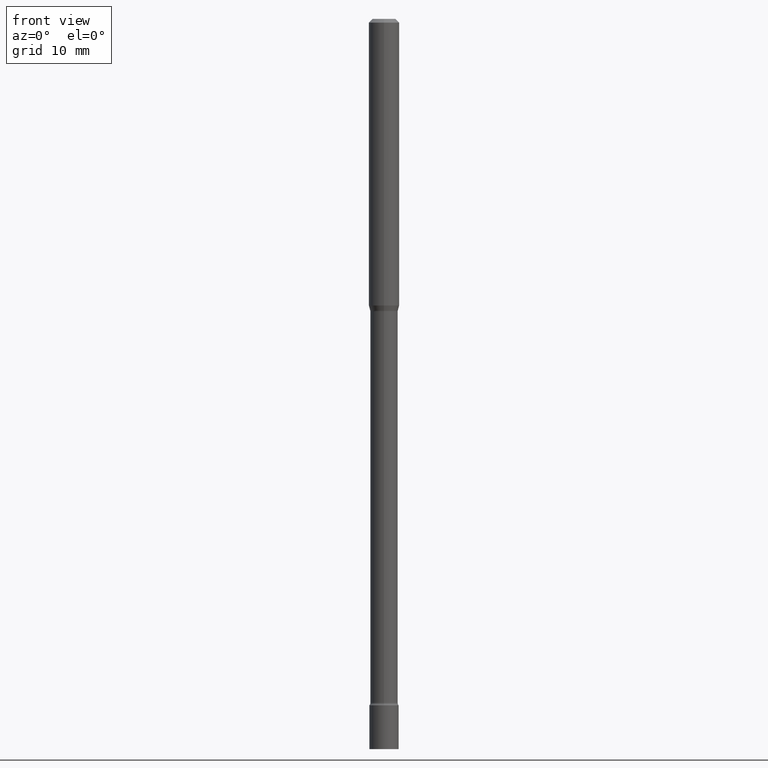
[diagram: clean part render]
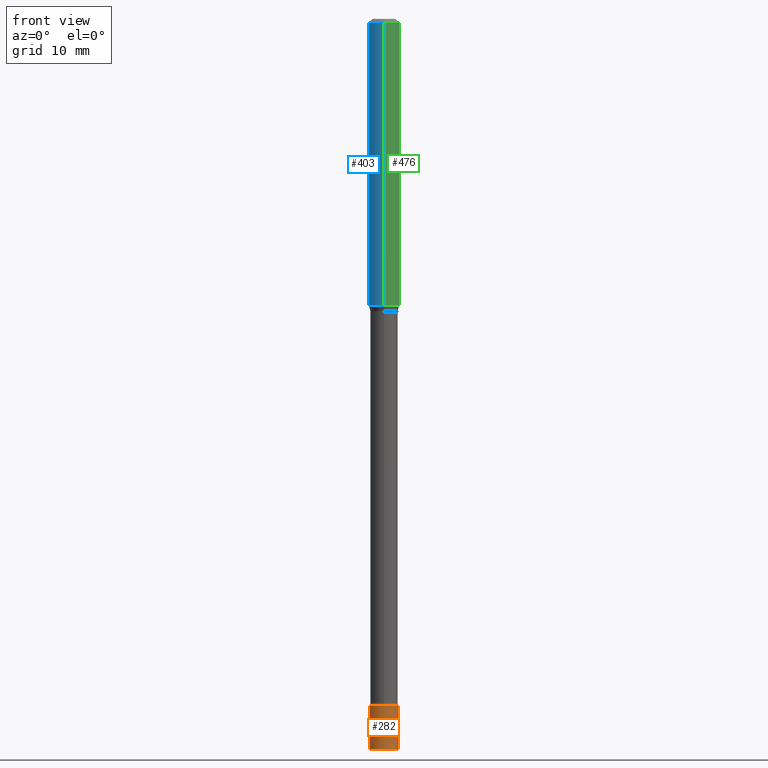
[diagram: same view with three faces highlighted in distinct colors, each labeled with its STEP entity id]
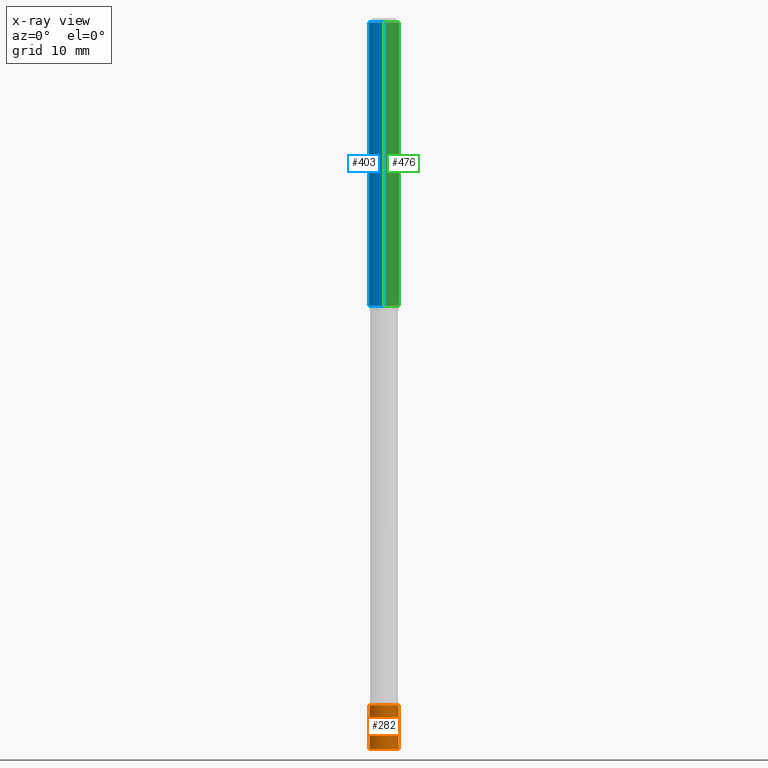
[diagram: x-ray of the same camera — body ghosted, the three highlighted faces saturated]
A machine part, front view with three faces highlighted in distinct colors.
The next image is the same camera in x-ray (body ghosted, the three faces saturated) — at least one of them is partly hidden behind the body in this view.
Their STEP definitions:

[orange] entity #282 — the highlighted cylindrical surface (edge-blend (fillet) strip) has radius 1.524 mm, axis along (-0, 0, 1).
#23 = CARTESIAN_POINT ( 'NONE',  ( 6.896222033442085337E-29, -9.845977375537671403E-15, -2.819999999999999840 ) ) ;
#36 = VECTOR ( 'NONE', #290, 39.37007874015748143 ) ;
#41 = CIRCLE ( 'NONE', #434, 0.05999999999999999778 ) ;
#42 = LINE ( 'NONE', #208, #36 ) ;
#48 = AXIS2_PLACEMENT_3D ( 'NONE', #175, #357, #256 ) ;
#51 = LINE ( 'NONE', #352, #367 ) ;
#59 = VERTEX_POINT ( 'NONE', #166 ) ;
#69 = ORIENTED_EDGE ( 'NONE', *, *, #441, .T. ) ;
#89 = FACE_OUTER_BOUND ( 'NONE', #325, .T. ) ;
#106 = EDGE_CURVE ( 'NONE', #465, #314, #400, .T. ) ;
#146 = ORIENTED_EDGE ( 'NONE', *, *, #106, .F. ) ;
#166 = CARTESIAN_POINT ( 'NONE',  ( 0.05999999999999999778, -1.089342177719061299E-14, -3.000000000000000444 ) ) ;
#175 = CARTESIAN_POINT ( 'NONE',  ( 0.000000000000000000, 0.000000000000000000, 0.000000000000000000 ) ) ;
#191 = EDGE_CURVE ( 'NONE', #459, #465, #51, .T. ) ;
#204 = DIRECTION ( 'NONE',  ( -2.445468806185136597E-29, 3.491481338843145583E-15, 1.000000000000000000 ) ) ;
#208 = CARTESIAN_POINT ( 'NONE',  ( 0.05999999999999999778, -4.189777606611760421E-16, 2.925706065477561756E-30 ) ) ;
#256 = DIRECTION ( 'NONE',  ( 1.000000000000000000, -6.982962677686267499E-15, 4.876176775795936353E-29 ) ) ;
#278 = AXIS2_PLACEMENT_3D ( 'NONE', #23, #356, #349 ) ;
#282 = ADVANCED_FACE ( 'NONE', ( #89 ), #300, .T. ) ;
#290 = DIRECTION ( 'NONE',  ( -2.445468806185136877E-29, 3.491481338843145188E-15, 1.000000000000000000 ) ) ;
#293 = CARTESIAN_POINT ( 'NONE',  ( -0.05999999999999999778, -9.733885054577494177E-15, -2.819999999999999840 ) ) ;
#300 = CYLINDRICAL_SURFACE ( 'NONE', #48, 0.05999999999999999778 ) ;
#314 = VERTEX_POINT ( 'NONE', #373 ) ;
#325 = EDGE_LOOP ( 'NONE', ( #507, #69, #397, #146 ) ) ;
#349 = DIRECTION ( 'NONE',  ( 1.000000000000000000, -6.982962677686268288E-15, 0.000000000000000000 ) ) ;
#352 = CARTESIAN_POINT ( 'NONE',  ( -0.05999999999999999778, 4.263256414560600957E-16, -2.951361054152943413E-30 ) ) ;
#356 = DIRECTION ( 'NONE',  ( -2.445468806185136597E-29, 3.491481338843145583E-15, 1.000000000000000000 ) ) ;
#357 = DIRECTION ( 'NONE',  ( -2.445468806185136597E-29, 3.491481338843145583E-15, 1.000000000000000000 ) ) ;
#360 = EDGE_CURVE ( 'NONE', #59, #314, #42, .T. ) ;
#367 = VECTOR ( 'NONE', #495, 39.37007874015748143 ) ;
#373 = CARTESIAN_POINT ( 'NONE',  ( 0.05999999999999999778, -1.026495513619884646E-14, -2.819999999999999840 ) ) ;
#397 = ORIENTED_EDGE ( 'NONE', *, *, #360, .T. ) ;
#400 = CIRCLE ( 'NONE', #278, 0.05999999999999999778 ) ;
#411 = CARTESIAN_POINT ( 'NONE',  ( -0.05999999999999999778, -9.733885054577494177E-15, -3.000000000000000444 ) ) ;
#434 = AXIS2_PLACEMENT_3D ( 'NONE', #516, #204, #482 ) ;
#441 = EDGE_CURVE ( 'NONE', #459, #59, #41, .T. ) ;
#459 = VERTEX_POINT ( 'NONE', #411 ) ;
#465 = VERTEX_POINT ( 'NONE', #293 ) ;
#482 = DIRECTION ( 'NONE',  ( 1.000000000000000000, -6.982962677686268288E-15, 0.000000000000000000 ) ) ;
#495 = DIRECTION ( 'NONE',  ( -2.445468806185136877E-29, 3.491481338843145188E-15, 1.000000000000000000 ) ) ;
#507 = ORIENTED_EDGE ( 'NONE', *, *, #191, .F. ) ;
#516 = CARTESIAN_POINT ( 'NONE',  ( 7.336406418555409790E-29, -1.047444401652943635E-14, -3.000000000000000444 ) ) ;

[blue] entity #403 — the highlighted cylindrical surface (edge-blend (fillet) strip) has radius 1.5875 mm, axis along (-0, 0, 1).
#4 = LINE ( 'NONE', #159, #421 ) ;
#39 = DIRECTION ( 'NONE',  ( -2.445526557259029404E-29, 3.491398636018344234E-15, 1.000000000000000000 ) ) ;
#46 = EDGE_CURVE ( 'NONE', #440, #197, #4, .T. ) ;
#65 = CARTESIAN_POINT ( 'NONE',  ( -4.364351673553912750E-16, -0.06250000000000005551, -0.01499999999999981209 ) ) ;
#85 = LINE ( 'NONE', #418, #305 ) ;
#88 = EDGE_CURVE ( 'NONE', #440, #152, #513, .T. ) ;
#137 = CARTESIAN_POINT ( 'NONE',  ( 4.440892098500915082E-16, 0.06249999999999993755, -0.01500000000000024751 ) ) ;
#144 = AXIS2_PLACEMENT_3D ( 'NONE', #216, #220, #182 ) ;
#152 = VERTEX_POINT ( 'NONE', #346 ) ;
#159 = CARTESIAN_POINT ( 'NONE',  ( 4.440892098500625669E-16, 0.06250000000000000000, -2.182124147511465146E-16 ) ) ;
#182 = DIRECTION ( 'NONE',  ( -6.982962677686265922E-15, -1.000000000000000000, 4.370956789862821150E-15 ) ) ;
#197 = VERTEX_POINT ( 'NONE', #137 ) ;
#216 = CARTESIAN_POINT ( 'NONE',  ( 2.878958209596842848E-29, -4.110194892917521342E-15, -1.177234490073830075 ) ) ;
#220 = DIRECTION ( 'NONE',  ( -2.445526557259029404E-29, 3.491398636018344234E-15, 1.000000000000000000 ) ) ;
#223 = AXIS2_PLACEMENT_3D ( 'NONE', #491, #297, #449 ) ;
#236 = ORIENTED_EDGE ( 'NONE', *, *, #423, .T. ) ;
#271 = ORIENTED_EDGE ( 'NONE', *, *, #88, .T. ) ;
#275 = EDGE_CURVE ( 'NONE', #197, #503, #444, .T. ) ;
#297 = DIRECTION ( 'NONE',  ( -2.445526557259029404E-29, 3.491398636018344234E-15, 1.000000000000000000 ) ) ;
#305 = VECTOR ( 'NONE', #370, 39.37007874015748143 ) ;
#315 = AXIS2_PLACEMENT_3D ( 'NONE', #413, #39, #483 ) ;
#326 = ORIENTED_EDGE ( 'NONE', *, *, #46, .F. ) ;
#346 = CARTESIAN_POINT ( 'NONE',  ( -4.364351673553629746E-16, -0.06250000000000412170, -1.177234490073829853 ) ) ;
#370 = DIRECTION ( 'NONE',  ( -2.445526557259029684E-29, 3.491398636018344234E-15, 1.000000000000000000 ) ) ;
#371 = ORIENTED_EDGE ( 'NONE', *, *, #275, .F. ) ;
#378 = CYLINDRICAL_SURFACE ( 'NONE', #315, 0.06250000000000000000 ) ;
#381 = FACE_OUTER_BOUND ( 'NONE', #478, .T. ) ;
#403 = ADVANCED_FACE ( 'NONE', ( #381 ), #378, .T. ) ;
#409 = CARTESIAN_POINT ( 'NONE',  ( 4.440892098500912124E-16, 0.06249999999999587830, -1.177234490073830298 ) ) ;
#413 = CARTESIAN_POINT ( 'NONE',  ( 0.000000000000000000, 0.000000000000000000, 0.000000000000000000 ) ) ;
#418 = CARTESIAN_POINT ( 'NONE',  ( -4.364351673553916201E-16, -0.06250000000000000000, 2.182124147511465146E-16 ) ) ;
#421 = VECTOR ( 'NONE', #484, 39.37007874015748143 ) ;
#423 = EDGE_CURVE ( 'NONE', #152, #503, #85, .T. ) ;
#440 = VERTEX_POINT ( 'NONE', #409 ) ;
#444 = CIRCLE ( 'NONE', #223, 0.06250000000000000000 ) ;
#449 = DIRECTION ( 'NONE',  ( -6.982962677686265922E-15, -1.000000000000000000, 3.483106191921935554E-15 ) ) ;
#478 = EDGE_LOOP ( 'NONE', ( #326, #271, #236, #371 ) ) ;
#483 = DIRECTION ( 'NONE',  ( -6.982962677686265922E-15, -1.000000000000000000, 3.491398636018344234E-15 ) ) ;
#484 = DIRECTION ( 'NONE',  ( -2.445526557259029684E-29, 3.491398636018344234E-15, 1.000000000000000000 ) ) ;
#491 = CARTESIAN_POINT ( 'NONE',  ( 3.668289835888551515E-31, -5.237097954027526852E-17, -0.01500000000000003067 ) ) ;
#503 = VERTEX_POINT ( 'NONE', #65 ) ;
#513 = CIRCLE ( 'NONE', #144, 0.06250000000000000000 ) ;

[green] entity #476 — the highlighted cylindrical surface (edge-blend (fillet) strip) has radius 1.5875 mm, axis along (-0, 0, 1).
#4 = LINE ( 'NONE', #159, #421 ) ;
#13 = DIRECTION ( 'NONE',  ( -6.982962677686265922E-15, -1.000000000000000000, 3.483106191921935554E-15 ) ) ;
#46 = EDGE_CURVE ( 'NONE', #440, #197, #4, .T. ) ;
#65 = CARTESIAN_POINT ( 'NONE',  ( -4.364351673553912750E-16, -0.06250000000000005551, -0.01499999999999981209 ) ) ;
#85 = LINE ( 'NONE', #418, #305 ) ;
#97 = EDGE_CURVE ( 'NONE', #152, #440, #196, .T. ) ;
#112 = DIRECTION ( 'NONE',  ( -6.982962677686265922E-15, -1.000000000000000000, 3.491398636018344234E-15 ) ) ;
#115 = EDGE_CURVE ( 'NONE', #503, #197, #433, .T. ) ;
#137 = CARTESIAN_POINT ( 'NONE',  ( 4.440892098500915082E-16, 0.06249999999999993755, -0.01500000000000024751 ) ) ;
#152 = VERTEX_POINT ( 'NONE', #346 ) ;
#159 = CARTESIAN_POINT ( 'NONE',  ( 4.440892098500625669E-16, 0.06250000000000000000, -2.182124147511465146E-16 ) ) ;
#176 = DIRECTION ( 'NONE',  ( -2.445526557259029404E-29, 3.491398636018344234E-15, 1.000000000000000000 ) ) ;
#193 = EDGE_LOOP ( 'NONE', ( #230, #358, #241, #265 ) ) ;
#196 = CIRCLE ( 'NONE', #353, 0.06250000000000000000 ) ;
#197 = VERTEX_POINT ( 'NONE', #137 ) ;
#230 = ORIENTED_EDGE ( 'NONE', *, *, #97, .T. ) ;
#233 = CYLINDRICAL_SURFACE ( 'NONE', #394, 0.06250000000000000000 ) ;
#241 = ORIENTED_EDGE ( 'NONE', *, *, #115, .F. ) ;
#265 = ORIENTED_EDGE ( 'NONE', *, *, #423, .F. ) ;
#303 = CARTESIAN_POINT ( 'NONE',  ( 3.668289835888551515E-31, -5.237097954027526852E-17, -0.01500000000000003067 ) ) ;
#305 = VECTOR ( 'NONE', #370, 39.37007874015748143 ) ;
#316 = DIRECTION ( 'NONE',  ( -2.445526557259029404E-29, 3.491398636018344234E-15, 1.000000000000000000 ) ) ;
#320 = CARTESIAN_POINT ( 'NONE',  ( 0.000000000000000000, 0.000000000000000000, 0.000000000000000000 ) ) ;
#346 = CARTESIAN_POINT ( 'NONE',  ( -4.364351673553629746E-16, -0.06250000000000412170, -1.177234490073829853 ) ) ;
#353 = AXIS2_PLACEMENT_3D ( 'NONE', #457, #176, #387 ) ;
#358 = ORIENTED_EDGE ( 'NONE', *, *, #46, .T. ) ;
#370 = DIRECTION ( 'NONE',  ( -2.445526557259029684E-29, 3.491398636018344234E-15, 1.000000000000000000 ) ) ;
#387 = DIRECTION ( 'NONE',  ( -6.982962677686265922E-15, -1.000000000000000000, 4.370956789862821150E-15 ) ) ;
#391 = DIRECTION ( 'NONE',  ( -2.445526557259029404E-29, 3.491398636018344234E-15, 1.000000000000000000 ) ) ;
#394 = AXIS2_PLACEMENT_3D ( 'NONE', #320, #316, #112 ) ;
#409 = CARTESIAN_POINT ( 'NONE',  ( 4.440892098500912124E-16, 0.06249999999999587830, -1.177234490073830298 ) ) ;
#418 = CARTESIAN_POINT ( 'NONE',  ( -4.364351673553916201E-16, -0.06250000000000000000, 2.182124147511465146E-16 ) ) ;
#421 = VECTOR ( 'NONE', #484, 39.37007874015748143 ) ;
#423 = EDGE_CURVE ( 'NONE', #152, #503, #85, .T. ) ;
#430 = FACE_OUTER_BOUND ( 'NONE', #193, .T. ) ;
#433 = CIRCLE ( 'NONE', #468, 0.06250000000000000000 ) ;
#440 = VERTEX_POINT ( 'NONE', #409 ) ;
#457 = CARTESIAN_POINT ( 'NONE',  ( 2.878958209596842848E-29, -4.110194892917521342E-15, -1.177234490073830075 ) ) ;
#468 = AXIS2_PLACEMENT_3D ( 'NONE', #303, #391, #13 ) ;
#476 = ADVANCED_FACE ( 'NONE', ( #430 ), #233, .T. ) ;
#484 = DIRECTION ( 'NONE',  ( -2.445526557259029684E-29, 3.491398636018344234E-15, 1.000000000000000000 ) ) ;
#503 = VERTEX_POINT ( 'NONE', #65 ) ;